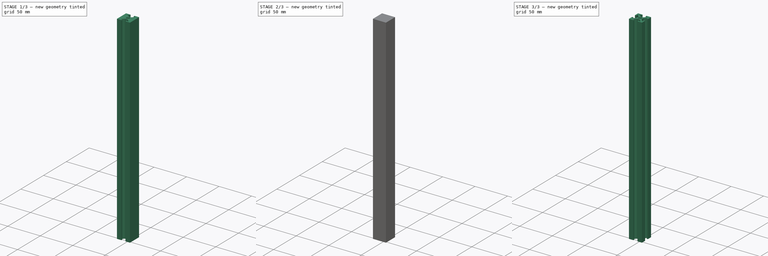
[diagram: build sequence overview — one tinted view per stage of 3, left to right]
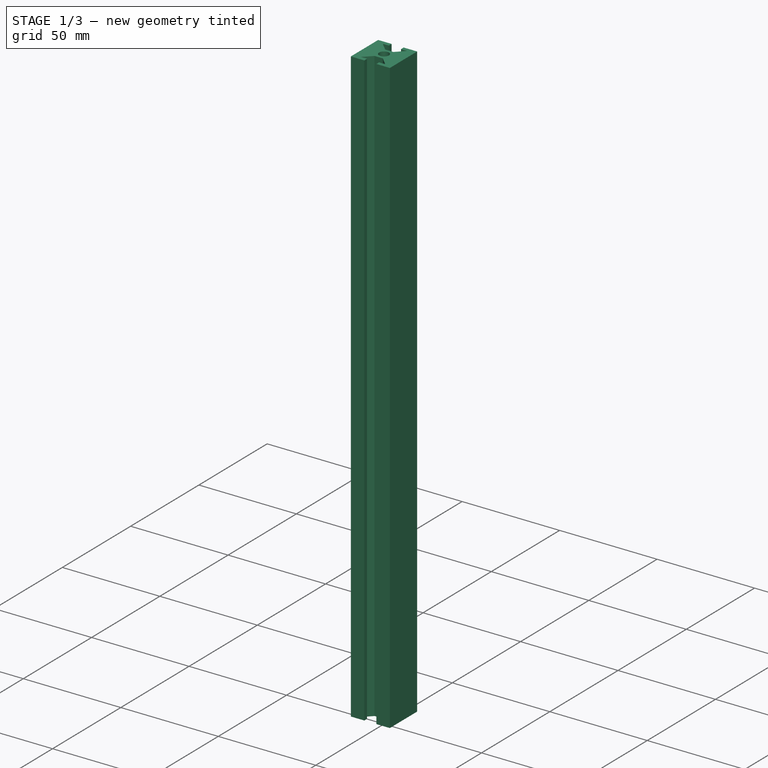
[diagram: stage 1 of 3 — iso view after this stage's code; geometry added in this stage tinted green]
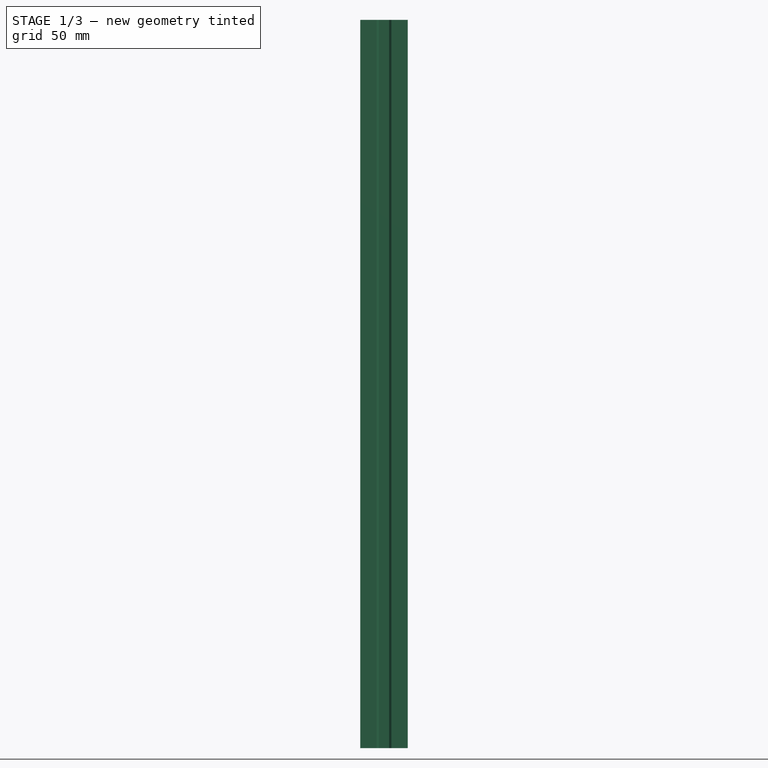
[diagram: stage 1 of 3 — front view after this stage's code; geometry added in this stage tinted green]
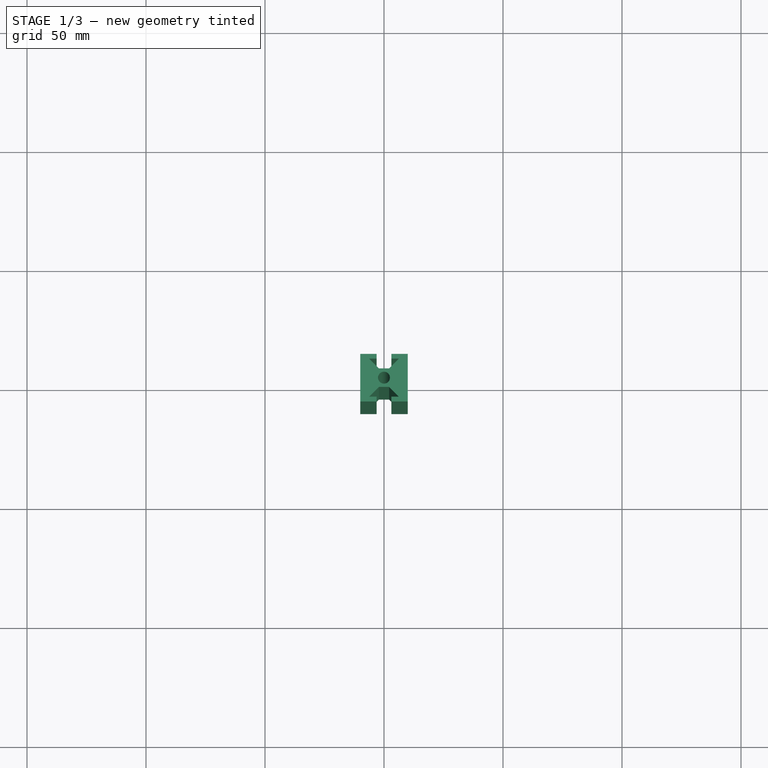
[diagram: stage 1 of 3 — top view after this stage's code; geometry added in this stage tinted green]
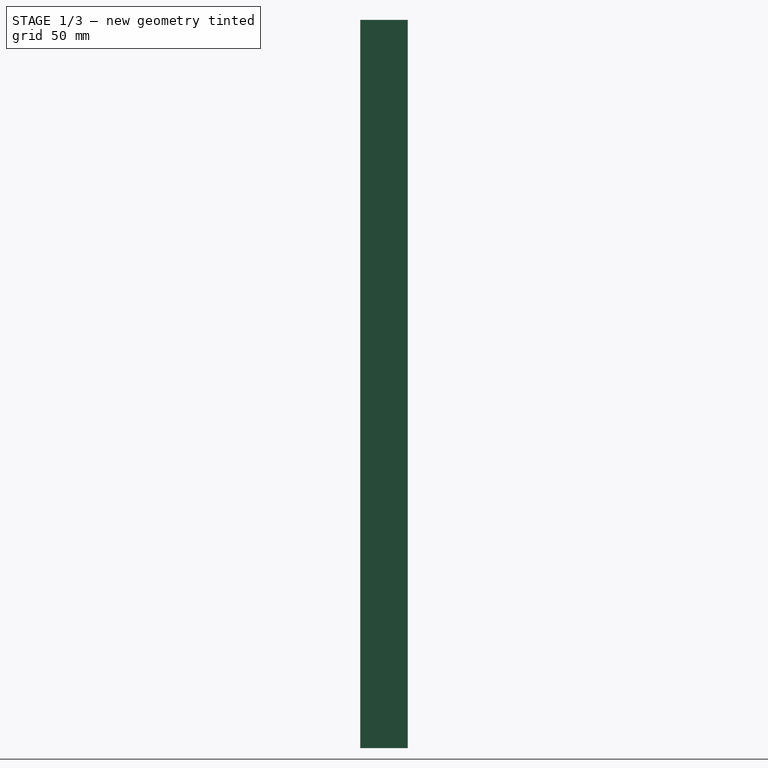
[diagram: stage 1 of 3 — right view after this stage's code; geometry added in this stage tinted green]
FCSTD DOCUMENT  (FreeCAD 0.20R29177 (Git))
Label: Autotruder
License: All rights reserved
LicenseURL: http://en.wikipedia.org/wiki/All_rights_reserved
objects: Sketcher::SketchObject×6, PartDesign::Pocket×4, PartDesign::Pad×2, PartDesign::Body×1
note: 19 computed .brp shape members not serialized (recipe doc carries the construction recipe); baked Part::Feature solids carry a one-line shape summary decoded from their .brp

FEATURE [PartDesign::Body] Body
  Group = -> [Sketch,Pad,Sketch001,Pocket,Sketch002,Pocket001]
  Origin = -> Origin
  Placement = pos=(-76,0,0) rot=(1,0,0;1.5708rad)
  Tip = -> Pocket001
FEATURE [Sketcher::SketchObject] Sketch003
  FullyConstrained = false
  MapMode = 5
  Support = -> [XY_Plane001]
  sketch-geometry (4):
    g0: LineSegment StartX=-10 StartY=10 StartZ=0 EndX=10 EndY=10 EndZ=0
    g1: LineSegment StartX=10 StartY=10 StartZ=0 EndX=10 EndY=-10 EndZ=0
    g2: LineSegment StartX=10 StartY=-10 StartZ=0 EndX=-10 EndY=-10 EndZ=0
    g3: LineSegment StartX=-10 StartY=-10 StartZ=0 EndX=-10 EndY=10 EndZ=0
  constraints (10):
    c: Coincident(g0,g1)
    c: Coincident(g1,g2)
    c: Coincident(g2,g3)
    c: Coincident(g3,g0)
    c: Horizontal(g0)
    c: Vertical(g1)
    c: Symmetric(g2,g1,g-2)
    c: Symmetric(g0,g2,g-1)
    c: Equal(g3,g2)
    c: Distance(g0) = 20
FEATURE [PartDesign::Pad] Pad001  label="Change Length Here!001"
  AllowMultiFace = false
  Direction = (0,0,1)
  Length = 306
  Length2 = 100
  Profile = -> Sketch003
  Refine = true
  Type = 0
FEATURE [Sketcher::SketchObject] Sketch004
  ExternalGeometry = -> [Pad001]
  FullyConstrained = false
  MapMode = 5
  Placement = pos=(0,0,306) rot=(0,0,1;0rad)
  Support = -> [Pad001]
  sketch-geometry (23):
    g0: LineSegment StartX=-3.1 StartY=10 StartZ=0 EndX=3.1 EndY=10 EndZ=0
    g1: LineSegment StartX=3.1 StartY=10 StartZ=0 EndX=3.1 EndY=8 EndZ=0
    g2: LineSegment StartX=3.1 StartY=8 StartZ=0 EndX=-3.1 EndY=8 EndZ=0
    g3: LineSegment StartX=-3.1 StartY=8 StartZ=0 EndX=-3.1 EndY=10 EndZ=0
    g4: LineSegment StartX=-3.1 StartY=8 StartZ=0 EndX=-6.23223 EndY=8 EndZ=0
    g5: LineSegment StartX=-6.23223 StartY=8 StartZ=0 EndX=-2.13223 EndY=3.9 EndZ=0
    g6: LineSegment StartX=-2.13223 StartY=3.9 StartZ=0 EndX=2.13223 EndY=3.9 EndZ=0
    g7: LineSegment StartX=2.13223 StartY=3.9 StartZ=0 EndX=6.23223 EndY=8 EndZ=0
    g8: LineSegment StartX=6.23223 StartY=8 StartZ=0 EndX=3.1 EndY=8 EndZ=0
    g9: LineSegment StartX=-3.9 StartY=3.9 StartZ=0 EndX=3.9 EndY=3.9 EndZ=0
    g10: LineSegment StartX=3.9 StartY=3.9 StartZ=0 EndX=3.9 EndY=-3.9 EndZ=0
    g11: LineSegment StartX=3.9 StartY=-3.9 StartZ=0 EndX=-3.9 EndY=-3.9 EndZ=0
    g12: LineSegment StartX=-3.9 StartY=-3.9 StartZ=0 EndX=-3.9 EndY=3.9 EndZ=0
    g13: Circle CenterX=0 CenterY=0 CenterZ=0 NormalX=0 NormalY=0 NormalZ=1 AngleXU=0 Radius=2.5
    g14: LineSegment StartX=3.9 StartY=3.9 StartZ=0 EndX=3.01612 EndY=4.78388 EndZ=0
    g15: LineSegment StartX=-3.1 StartY=-8 StartZ=0 EndX=-6.23223 EndY=-8 EndZ=0
    g16: LineSegment StartX=6.23223 StartY=-8 StartZ=0 EndX=3.1 EndY=-8 EndZ=0
    g17: LineSegment StartX=3.1 StartY=-10 StartZ=0 EndX=3.1 EndY=-8 EndZ=0
    g18: LineSegment StartX=-3.1 StartY=-10 StartZ=0 EndX=3.1 EndY=-10 EndZ=0
    g19: LineSegment StartX=-3.1 StartY=-8 StartZ=0 EndX=-3.1 EndY=-10 EndZ=0
    g20: LineSegment StartX=-6.23223 StartY=-8 StartZ=0 EndX=-2.13223 EndY=-3.9 EndZ=0
    g21: LineSegment StartX=-2.13223 StartY=-3.9 StartZ=0 EndX=2.13223 EndY=-3.9 EndZ=0
    g22: LineSegment StartX=2.13223 StartY=-3.9 StartZ=0 EndX=6.23223 EndY=-8 EndZ=0
  constraints (55):
    c: Coincident(g0,g1)
    c: Coincident(g1,g2)
    c: Coincident(g2,g3)
    c: Coincident(g3,g0)
    c: Horizontal(g2)
    c: Vertical(g1)
    c: Vertical(g3)
    c: PointOnObject(g0,g-3)
    c: Symmetric(g0,g0,g-2)
    c: Distance(g0) = 6.2
    c: Distance(g3) = 2
    c: Coincident(g3,g4)
    c: Horizontal(g4)
    c: Coincident(g4,g5)
    c: Coincident(g5,g6)
    c: Coincident(g6,g7)
    c: Coincident(g7,g8)
    c: Coincident(g8,g1)
    c: Horizontal(g8)
    c: Symmetric(g5,g6,g-2)
    c: Equal(g4,g8)
    c: Coincident(g9,g10)
    c: Coincident(g10,g11)
    c: Coincident(g11,g12)
    c: Coincident(g12,g9)
    c: Horizontal(g9)
    c: Vertical(g12)
    c: Equal(g9,g12)
    c: Symmetric(g11,g10,g-2)
    c: Symmetric(g9,g10,g-1)
    c: Distance(g9) = 7.8
    c: Coincident(g13,g-1)
    c: Radius(g13) = 2.5
    c: DistanceY(g6,g0) = 6.1
    c: Coincident(g14,g9)
    c: PointOnObject(g14,g7)
    c: Perpendicular(g7,g14)
    c: Distance(g14) = 1.25
    c: Angle(g6,g5) = 2.35619
    c: Coincident(g18,g17)
    c: Coincident(g19,g18)
    c: Vertical(g17)
    c: Vertical(g19)
    c: Distance(g18) = 6.2
    c: Distance(g19) = 2
    c: Coincident(g19,g15)
    c: Horizontal(g15)
    c: Coincident(g15,g20)
    c: Coincident(g20,g21)
    c: Coincident(g21,g22)
    c: Coincident(g22,g16)
    c: Coincident(g16,g17)
    c: Horizontal(g16)
    c: Equal(g15,g16)
    c: Angle(g21,g20) = -2.35619
FEATURE [PartDesign::Pocket] Pocket002  label="Top & Bottom Slots001"
  AllowMultiFace = false
  BaseFeature = -> Pad001
  Direction = (0,0,-1)
  Length = 5
  Length2 = 100
  Profile = -> Sketch004
  Refine = true
  Type = 1
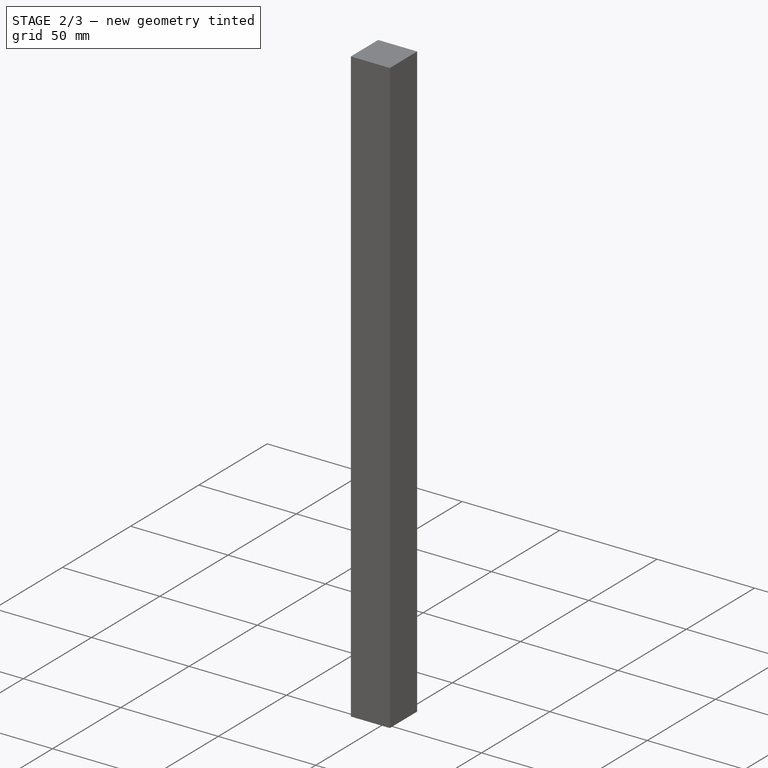
[diagram: stage 2 of 3 — iso view after this stage's code; geometry added in this stage tinted green]
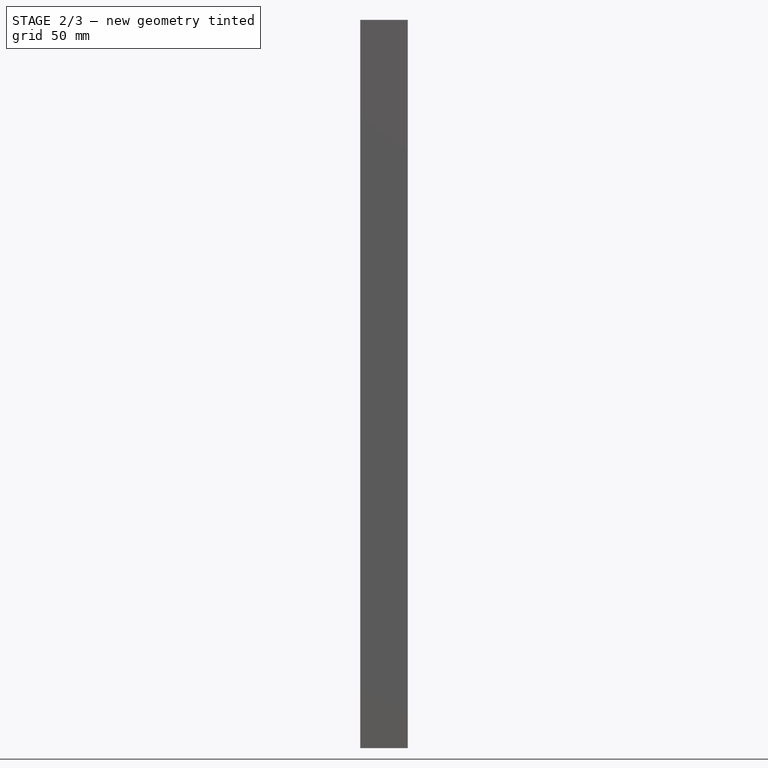
[diagram: stage 2 of 3 — front view after this stage's code; geometry added in this stage tinted green]
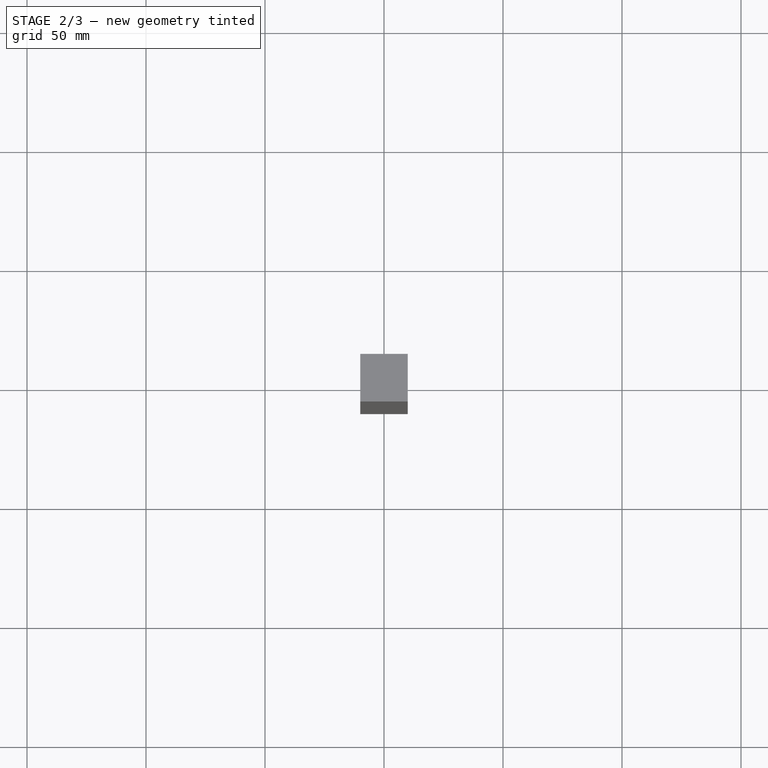
[diagram: stage 2 of 3 — top view after this stage's code; geometry added in this stage tinted green]
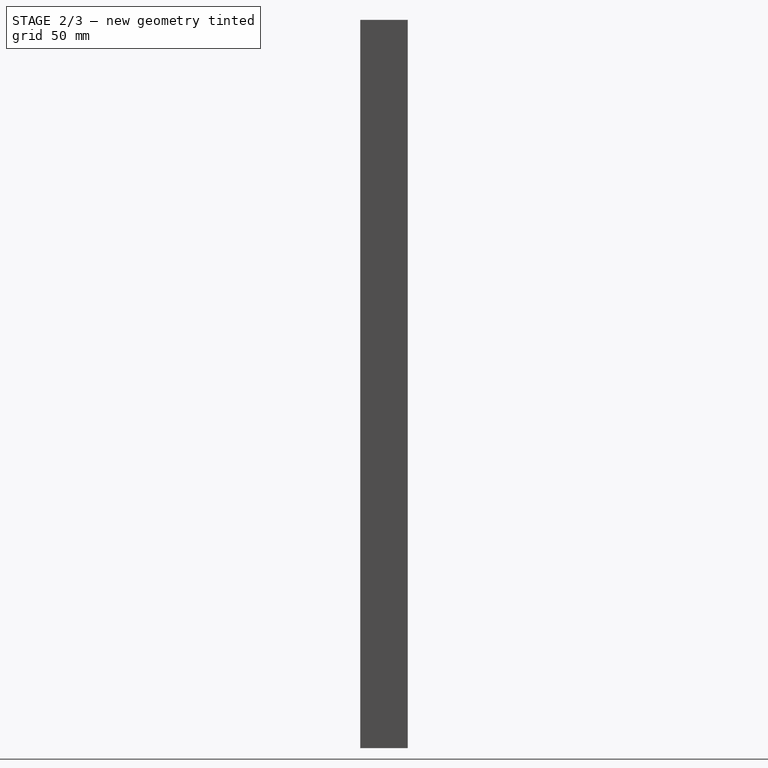
[diagram: stage 2 of 3 — right view after this stage's code; geometry added in this stage tinted green]
FEATURE [Sketcher::SketchObject] Sketch
  FullyConstrained = false
  MapMode = 5
  Support = -> [XY_Plane]
  sketch-geometry (4):
    g0: LineSegment StartX=-10 StartY=10 StartZ=0 EndX=10 EndY=10 EndZ=0
    g1: LineSegment StartX=10 StartY=10 StartZ=0 EndX=10 EndY=-10 EndZ=0
    g2: LineSegment StartX=10 StartY=-10 StartZ=0 EndX=-10 EndY=-10 EndZ=0
    g3: LineSegment StartX=-10 StartY=-10 StartZ=0 EndX=-10 EndY=10 EndZ=0
  constraints (10):
    c: Coincident(g0,g1)
    c: Coincident(g1,g2)
    c: Coincident(g2,g3)
    c: Coincident(g3,g0)
    c: Horizontal(g0)
    c: Vertical(g1)
    c: Symmetric(g2,g1,g-2)
    c: Symmetric(g0,g2,g-1)
    c: Equal(g3,g2)
    c: Distance(g0) = 20
FEATURE [PartDesign::Pad] Pad  label="Change Length Here!"
  AllowMultiFace = false
  Direction = (0,0,1)
  Length = 306
  Length2 = 100
  Profile = -> Sketch
  Refine = true
  Type = 0
FEATURE [Sketcher::SketchObject] Sketch005
  ExternalGeometry = -> [Pocket002]
  FullyConstrained = false
  MapMode = 5
  Placement = pos=(0,0,0) rot=(1,0,0;3.14159rad)
  Support = -> [Pocket002]
  sketch-geometry (19):
    g0: LineSegment StartX=-10 StartY=-3.1 StartZ=0 EndX=-8 EndY=-3.1 EndZ=0
    g1: LineSegment StartX=-8 StartY=-3.1 StartZ=0 EndX=-8 EndY=3.1 EndZ=0
    g2: LineSegment StartX=-8 StartY=3.1 StartZ=0 EndX=-10 EndY=3.1 EndZ=0
    g3: LineSegment StartX=-10 StartY=3.1 StartZ=0 EndX=-10 EndY=-3.1 EndZ=0
    g4: LineSegment StartX=-8 StartY=-3.1 StartZ=0 EndX=-8 EndY=-6.23223 EndZ=0
    g5: LineSegment StartX=-8 StartY=-6.23223 StartZ=0 EndX=-3.9 EndY=-2.13223 EndZ=0
    g6: LineSegment StartX=-3.9 StartY=-2.13223 StartZ=0 EndX=-3.9 EndY=2.13223 EndZ=0
    g7: LineSegment StartX=-3.9 StartY=2.13223 StartZ=0 EndX=-8 EndY=6.23223 EndZ=0
    g8: LineSegment StartX=-8 StartY=6.23223 StartZ=0 EndX=-8 EndY=3.1 EndZ=0
    g9: LineSegment StartX=-2.13223 StartY=3.9 StartZ=0 EndX=-3.9 EndY=2.13223 EndZ=0
    g10: LineSegment StartX=2.13223 StartY=3.9 StartZ=0 EndX=3.9 EndY=2.13223 EndZ=0
    g11: LineSegment StartX=3.9 StartY=-2.13223 StartZ=0 EndX=3.9 EndY=2.13223 EndZ=0
    g12: LineSegment StartX=8 StartY=-6.23223 StartZ=0 EndX=3.9 EndY=-2.13223 EndZ=0
    g13: LineSegment StartX=3.9 StartY=2.13223 StartZ=0 EndX=8 EndY=6.23223 EndZ=0
    g14: LineSegment StartX=8 StartY=6.23223 StartZ=0 EndX=8 EndY=3.1 EndZ=0
    g15: LineSegment StartX=8 StartY=3.1 StartZ=0 EndX=10 EndY=3.1 EndZ=0
    g16: LineSegment StartX=10 StartY=3.1 StartZ=0 EndX=10 EndY=-3.1 EndZ=0
    g17: LineSegment StartX=10 StartY=-3.1 StartZ=0 EndX=8 EndY=-3.1 EndZ=0
    g18: LineSegment StartX=8 StartY=-3.1 StartZ=0 EndX=8 EndY=-6.23223 EndZ=0
  constraints (43):
    c: Coincident(g0,g1)
    c: Coincident(g1,g2)
    c: Coincident(g2,g3)
    c: Coincident(g3,g0)
    c: Horizontal(g0)
    c: Horizontal(g2)
    c: Vertical(g1)
    c: PointOnObject(g0,g-3)
    c: Symmetric(g2,g0,g-1)
    c: Distance(g3) = 6.2
    c: Distance(g0) = 2
    c: Coincident(g0,g4)
    c: Vertical(g4)
    c: Coincident(g4,g5)
    c: Coincident(g5,g6)
    c: Coincident(g6,g7)
    c: Coincident(g7,g8)
    c: Coincident(g8,g2)
    c: Vertical(g8)
    c: Equal(g4,g8)
    c: Symmetric(g6,g5,g-1)
    c: DistanceX(g2,g6) = 6.1
    c: Angle(g6,g5) = 2.35619
    c: Coincident(g9,g-4)
    c: Perpendicular(g-4,g9)
    c: Coincident(g6,g9)
    c: Coincident(g15,g16)
    c: Coincident(g16,g17)
    c: Horizontal(g17)
    c: Horizontal(g15)
    c: Distance(g16) = 6.2
    c: Distance(g17) = 2
    c: Coincident(g17,g18)
    c: Vertical(g18)
    c: Coincident(g18,g12)
    c: Coincident(g12,g11)
    c: Coincident(g11,g13)
    c: Coincident(g13,g14)
    c: Coincident(g14,g15)
    c: Vertical(g14)
    c: Equal(g18,g14)
    c: Angle(g11,g12) = -2.35619
    c: Coincident(g11,g10)
FEATURE [PartDesign::Pocket] Pocket003  label="R&L Slots001"
  AllowMultiFace = false
  BaseFeature = -> Pocket002
  Direction = (0,0,1)
  Length = 5
  Length2 = 100
  Placement = pos=(0,0,0) rot=(1,0,0;1.5708rad)
  Profile = -> Sketch005
  Refine = true
  Type = 1
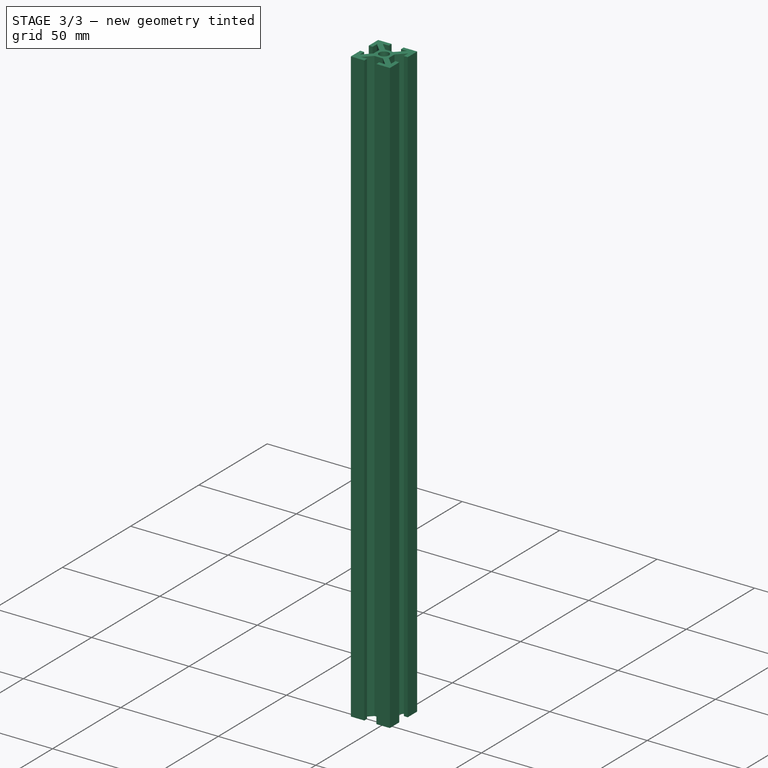
[diagram: stage 3 of 3 — iso view after this stage's code; geometry added in this stage tinted green]
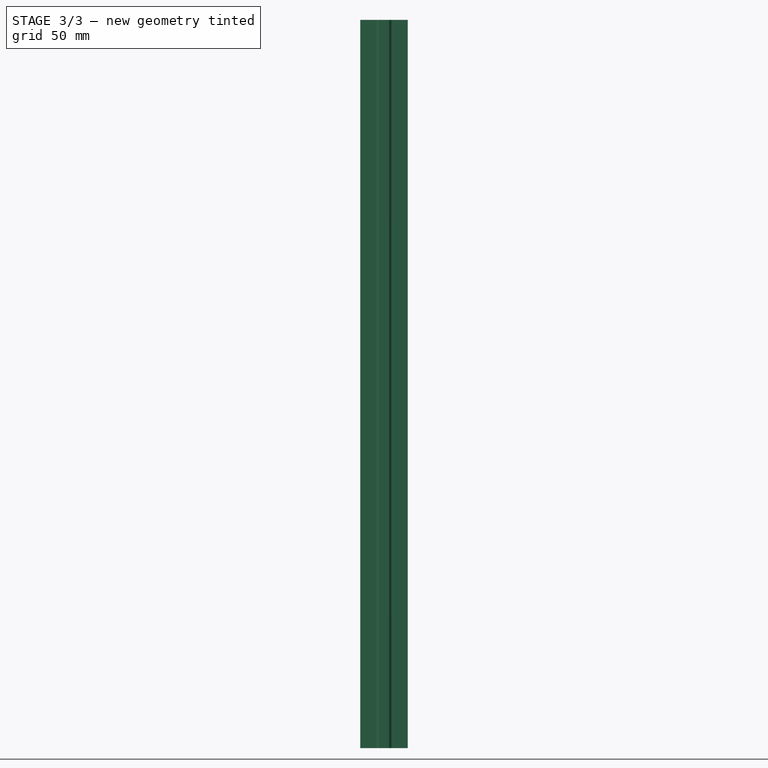
[diagram: stage 3 of 3 — front view after this stage's code; geometry added in this stage tinted green]
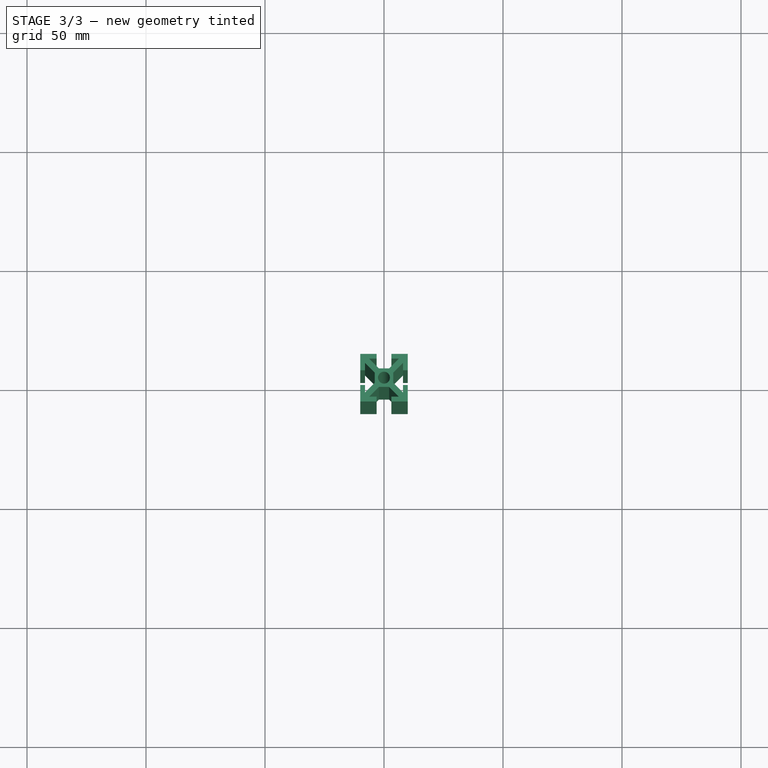
[diagram: stage 3 of 3 — top view after this stage's code; geometry added in this stage tinted green]
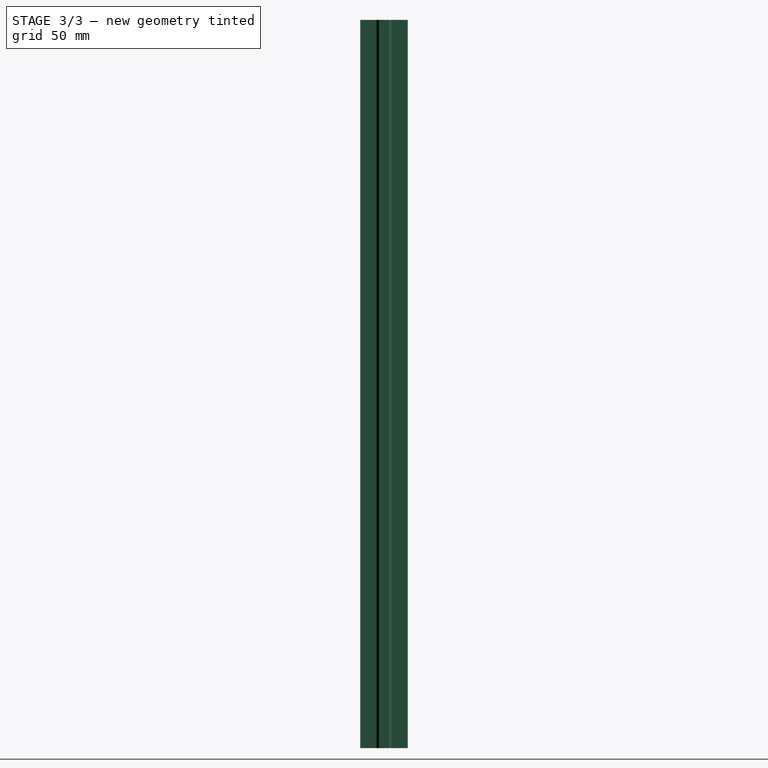
[diagram: stage 3 of 3 — right view after this stage's code; geometry added in this stage tinted green]
FEATURE [Sketcher::SketchObject] Sketch001
  ExternalGeometry = -> [Pad]
  FullyConstrained = false
  MapMode = 5
  Placement = pos=(0,0,306) rot=(0,0,1;0rad)
  Support = -> [Pad]
  sketch-geometry (23):
    g0: LineSegment StartX=-3.1 StartY=10 StartZ=0 EndX=3.1 EndY=10 EndZ=0
    g1: LineSegment StartX=3.1 StartY=10 StartZ=0 EndX=3.1 EndY=8 EndZ=0
    g2: LineSegment StartX=3.1 StartY=8 StartZ=0 EndX=-3.1 EndY=8 EndZ=0
    g3: LineSegment StartX=-3.1 StartY=8 StartZ=0 EndX=-3.1 EndY=10 EndZ=0
    g4: LineSegment StartX=-3.1 StartY=8 StartZ=0 EndX=-6.23223 EndY=8 EndZ=0
    g5: LineSegment StartX=-6.23223 StartY=8 StartZ=0 EndX=-2.13223 EndY=3.9 EndZ=0
    g6: LineSegment StartX=-2.13223 StartY=3.9 StartZ=0 EndX=2.13223 EndY=3.9 EndZ=0
    g7: LineSegment StartX=2.13223 StartY=3.9 StartZ=0 EndX=6.23223 EndY=8 EndZ=0
    g8: LineSegment StartX=6.23223 StartY=8 StartZ=0 EndX=3.1 EndY=8 EndZ=0
    g9: LineSegment StartX=-3.9 StartY=3.9 StartZ=0 EndX=3.9 EndY=3.9 EndZ=0
    g10: LineSegment StartX=3.9 StartY=3.9 StartZ=0 EndX=3.9 EndY=-3.9 EndZ=0
    g11: LineSegment StartX=3.9 StartY=-3.9 StartZ=0 EndX=-3.9 EndY=-3.9 EndZ=0
    g12: LineSegment StartX=-3.9 StartY=-3.9 StartZ=0 EndX=-3.9 EndY=3.9 EndZ=0
    g13: Circle CenterX=0 CenterY=0 CenterZ=0 NormalX=0 NormalY=0 NormalZ=1 AngleXU=0 Radius=2.5
    g14: LineSegment StartX=3.9 StartY=3.9 StartZ=0 EndX=3.01612 EndY=4.78388 EndZ=0
    g15: LineSegment StartX=-3.1 StartY=-8 StartZ=0 EndX=-6.23223 EndY=-8 EndZ=0
    g16: LineSegment StartX=6.23223 StartY=-8 StartZ=0 EndX=3.1 EndY=-8 EndZ=0
    g17: LineSegment StartX=3.1 StartY=-10 StartZ=0 EndX=3.1 EndY=-8 EndZ=0
    g18: LineSegment StartX=-3.1 StartY=-10 StartZ=0 EndX=3.1 EndY=-10 EndZ=0
    g19: LineSegment StartX=-3.1 StartY=-8 StartZ=0 EndX=-3.1 EndY=-10 EndZ=0
    g20: LineSegment StartX=-6.23223 StartY=-8 StartZ=0 EndX=-2.13223 EndY=-3.9 EndZ=0
    g21: LineSegment StartX=-2.13223 StartY=-3.9 StartZ=0 EndX=2.13223 EndY=-3.9 EndZ=0
    g22: LineSegment StartX=2.13223 StartY=-3.9 StartZ=0 EndX=6.23223 EndY=-8 EndZ=0
  constraints (55):
    c: Coincident(g0,g1)
    c: Coincident(g1,g2)
    c: Coincident(g2,g3)
    c: Coincident(g3,g0)
    c: Horizontal(g2)
    c: Vertical(g1)
    c: Vertical(g3)
    c: PointOnObject(g0,g-3)
    c: Symmetric(g0,g0,g-2)
    c: Distance(g0) = 6.2
    c: Distance(g3) = 2
    c: Coincident(g3,g4)
    c: Horizontal(g4)
    c: Coincident(g4,g5)
    c: Coincident(g5,g6)
    c: Coincident(g6,g7)
    c: Coincident(g7,g8)
    c: Coincident(g8,g1)
    c: Horizontal(g8)
    c: Symmetric(g5,g6,g-2)
    c: Equal(g4,g8)
    c: Coincident(g9,g10)
    c: Coincident(g10,g11)
    c: Coincident(g11,g12)
    c: Coincident(g12,g9)
    c: Horizontal(g9)
    c: Vertical(g12)
    c: Equal(g9,g12)
    c: Symmetric(g11,g10,g-2)
    c: Symmetric(g9,g10,g-1)
    c: Distance(g9) = 7.8
    c: Coincident(g13,g-1)
    c: Radius(g13) = 2.5
    c: DistanceY(g6,g0) = 6.1
    c: Coincident(g14,g9)
    c: PointOnObject(g14,g7)
    c: Perpendicular(g7,g14)
    c: Distance(g14) = 1.25
    c: Angle(g6,g5) = 2.35619
    c: Coincident(g18,g17)
    c: Coincident(g19,g18)
    c: Vertical(g17)
    c: Vertical(g19)
    c: Distance(g18) = 6.2
    c: Distance(g19) = 2
    c: Coincident(g19,g15)
    c: Horizontal(g15)
    c: Coincident(g15,g20)
    c: Coincident(g20,g21)
    c: Coincident(g21,g22)
    c: Coincident(g22,g16)
    c: Coincident(g16,g17)
    c: Horizontal(g16)
    c: Equal(g15,g16)
    c: Angle(g21,g20) = -2.35619
FEATURE [PartDesign::Pocket] Pocket  label="Top & Bottom Slots"
  AllowMultiFace = false
  BaseFeature = -> Pad
  Direction = (0,0,-1)
  Length = 5
  Length2 = 100
  Profile = -> Sketch001
  Refine = true
  Type = 1
FEATURE [Sketcher::SketchObject] Sketch002
  ExternalGeometry = -> [Pocket]
  FullyConstrained = false
  MapMode = 5
  Placement = pos=(0,0,0) rot=(1,0,0;3.14159rad)
  Support = -> [Pocket]
  sketch-geometry (19):
    g0: LineSegment StartX=-10 StartY=-3.1 StartZ=0 EndX=-8 EndY=-3.1 EndZ=0
    g1: LineSegment StartX=-8 StartY=-3.1 StartZ=0 EndX=-8 EndY=3.1 EndZ=0
    g2: LineSegment StartX=-8 StartY=3.1 StartZ=0 EndX=-10 EndY=3.1 EndZ=0
    g3: LineSegment StartX=-10 StartY=3.1 StartZ=0 EndX=-10 EndY=-3.1 EndZ=0
    g4: LineSegment StartX=-8 StartY=-3.1 StartZ=0 EndX=-8 EndY=-6.23223 EndZ=0
    g5: LineSegment StartX=-8 StartY=-6.23223 StartZ=0 EndX=-3.9 EndY=-2.13223 EndZ=0
    g6: LineSegment StartX=-3.9 StartY=-2.13223 StartZ=0 EndX=-3.9 EndY=2.13223 EndZ=0
    g7: LineSegment StartX=-3.9 StartY=2.13223 StartZ=0 EndX=-8 EndY=6.23223 EndZ=0
    g8: LineSegment StartX=-8 StartY=6.23223 StartZ=0 EndX=-8 EndY=3.1 EndZ=0
    g9: LineSegment StartX=-2.13223 StartY=3.9 StartZ=0 EndX=-3.9 EndY=2.13223 EndZ=0
    g10: LineSegment StartX=2.13223 StartY=3.9 StartZ=0 EndX=3.9 EndY=2.13223 EndZ=0
    g11: LineSegment StartX=3.9 StartY=-2.13223 StartZ=0 EndX=3.9 EndY=2.13223 EndZ=0
    g12: LineSegment StartX=8 StartY=-6.23223 StartZ=0 EndX=3.9 EndY=-2.13223 EndZ=0
    g13: LineSegment StartX=3.9 StartY=2.13223 StartZ=0 EndX=8 EndY=6.23223 EndZ=0
    g14: LineSegment StartX=8 StartY=6.23223 StartZ=0 EndX=8 EndY=3.1 EndZ=0
    g15: LineSegment StartX=8 StartY=3.1 StartZ=0 EndX=10 EndY=3.1 EndZ=0
    g16: LineSegment StartX=10 StartY=3.1 StartZ=0 EndX=10 EndY=-3.1 EndZ=0
    g17: LineSegment StartX=10 StartY=-3.1 StartZ=0 EndX=8 EndY=-3.1 EndZ=0
    g18: LineSegment StartX=8 StartY=-3.1 StartZ=0 EndX=8 EndY=-6.23223 EndZ=0
  constraints (43):
    c: Coincident(g0,g1)
    c: Coincident(g1,g2)
    c: Coincident(g2,g3)
    c: Coincident(g3,g0)
    c: Horizontal(g0)
    c: Horizontal(g2)
    c: Vertical(g1)
    c: PointOnObject(g0,g-3)
    c: Symmetric(g2,g0,g-1)
    c: Distance(g3) = 6.2
    c: Distance(g0) = 2
    c: Coincident(g0,g4)
    c: Vertical(g4)
    c: Coincident(g4,g5)
    c: Coincident(g5,g6)
    c: Coincident(g6,g7)
    c: Coincident(g7,g8)
    c: Coincident(g8,g2)
    c: Vertical(g8)
    c: Equal(g4,g8)
    c: Symmetric(g6,g5,g-1)
    c: DistanceX(g2,g6) = 6.1
    c: Angle(g6,g5) = 2.35619
    c: Coincident(g9,g-4)
    c: Perpendicular(g-4,g9)
    c: Coincident(g6,g9)
    c: Coincident(g15,g16)
    c: Coincident(g16,g17)
    c: Horizontal(g17)
    c: Horizontal(g15)
    c: Distance(g16) = 6.2
    c: Distance(g17) = 2
    c: Coincident(g17,g18)
    c: Vertical(g18)
    c: Coincident(g18,g12)
    c: Coincident(g12,g11)
    c: Coincident(g11,g13)
    c: Coincident(g13,g14)
    c: Coincident(g14,g15)
    c: Vertical(g14)
    c: Equal(g18,g14)
    c: Angle(g11,g12) = -2.35619
    c: Coincident(g11,g10)
FEATURE [PartDesign::Pocket] Pocket001  label="R&L Slots"
  AllowMultiFace = false
  BaseFeature = -> Pocket
  Direction = (0,0,1)
  Length = 5
  Length2 = 100
  Profile = -> Sketch002
  Refine = true
  Type = 1
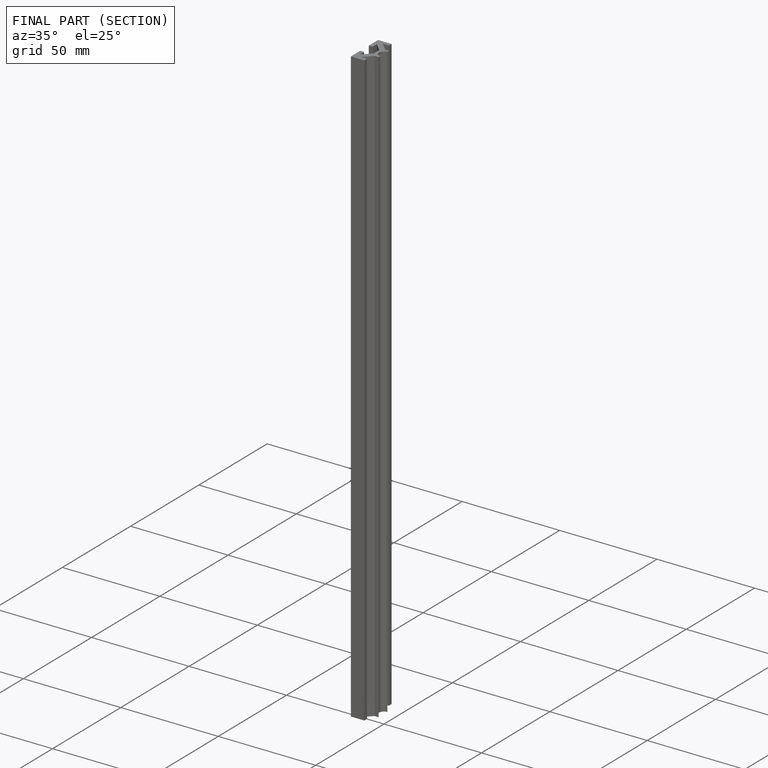
[diagram: finished part — half-section view (interior)]
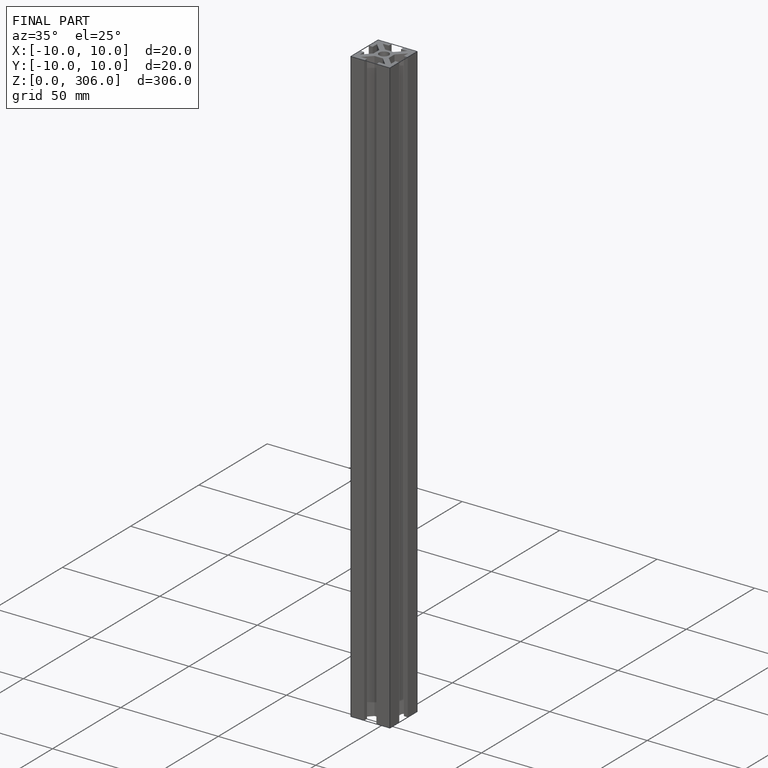
[diagram: finished part — iso view with bounding-box wireframe]
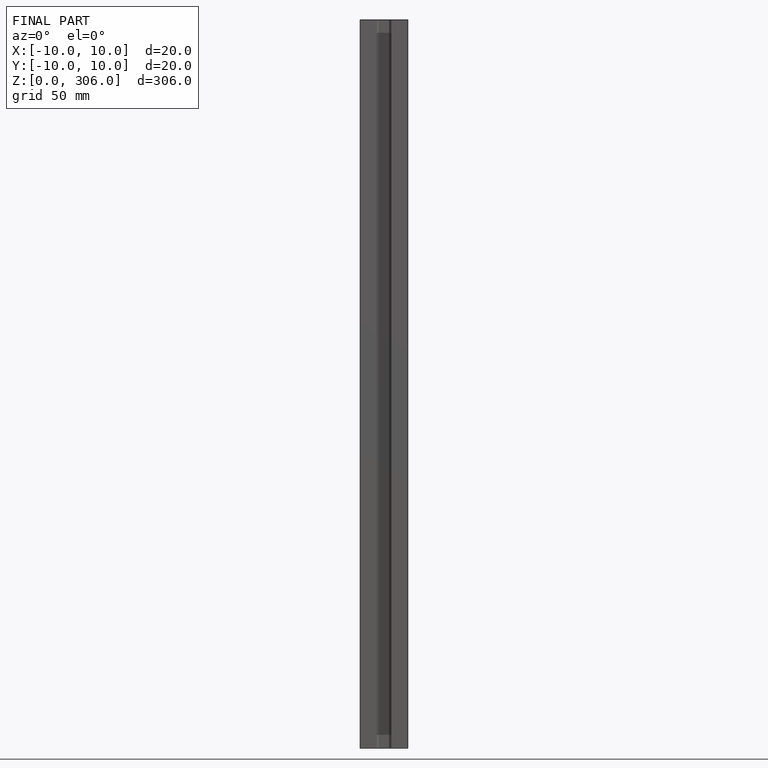
[diagram: finished part — front view with bounding-box wireframe]
